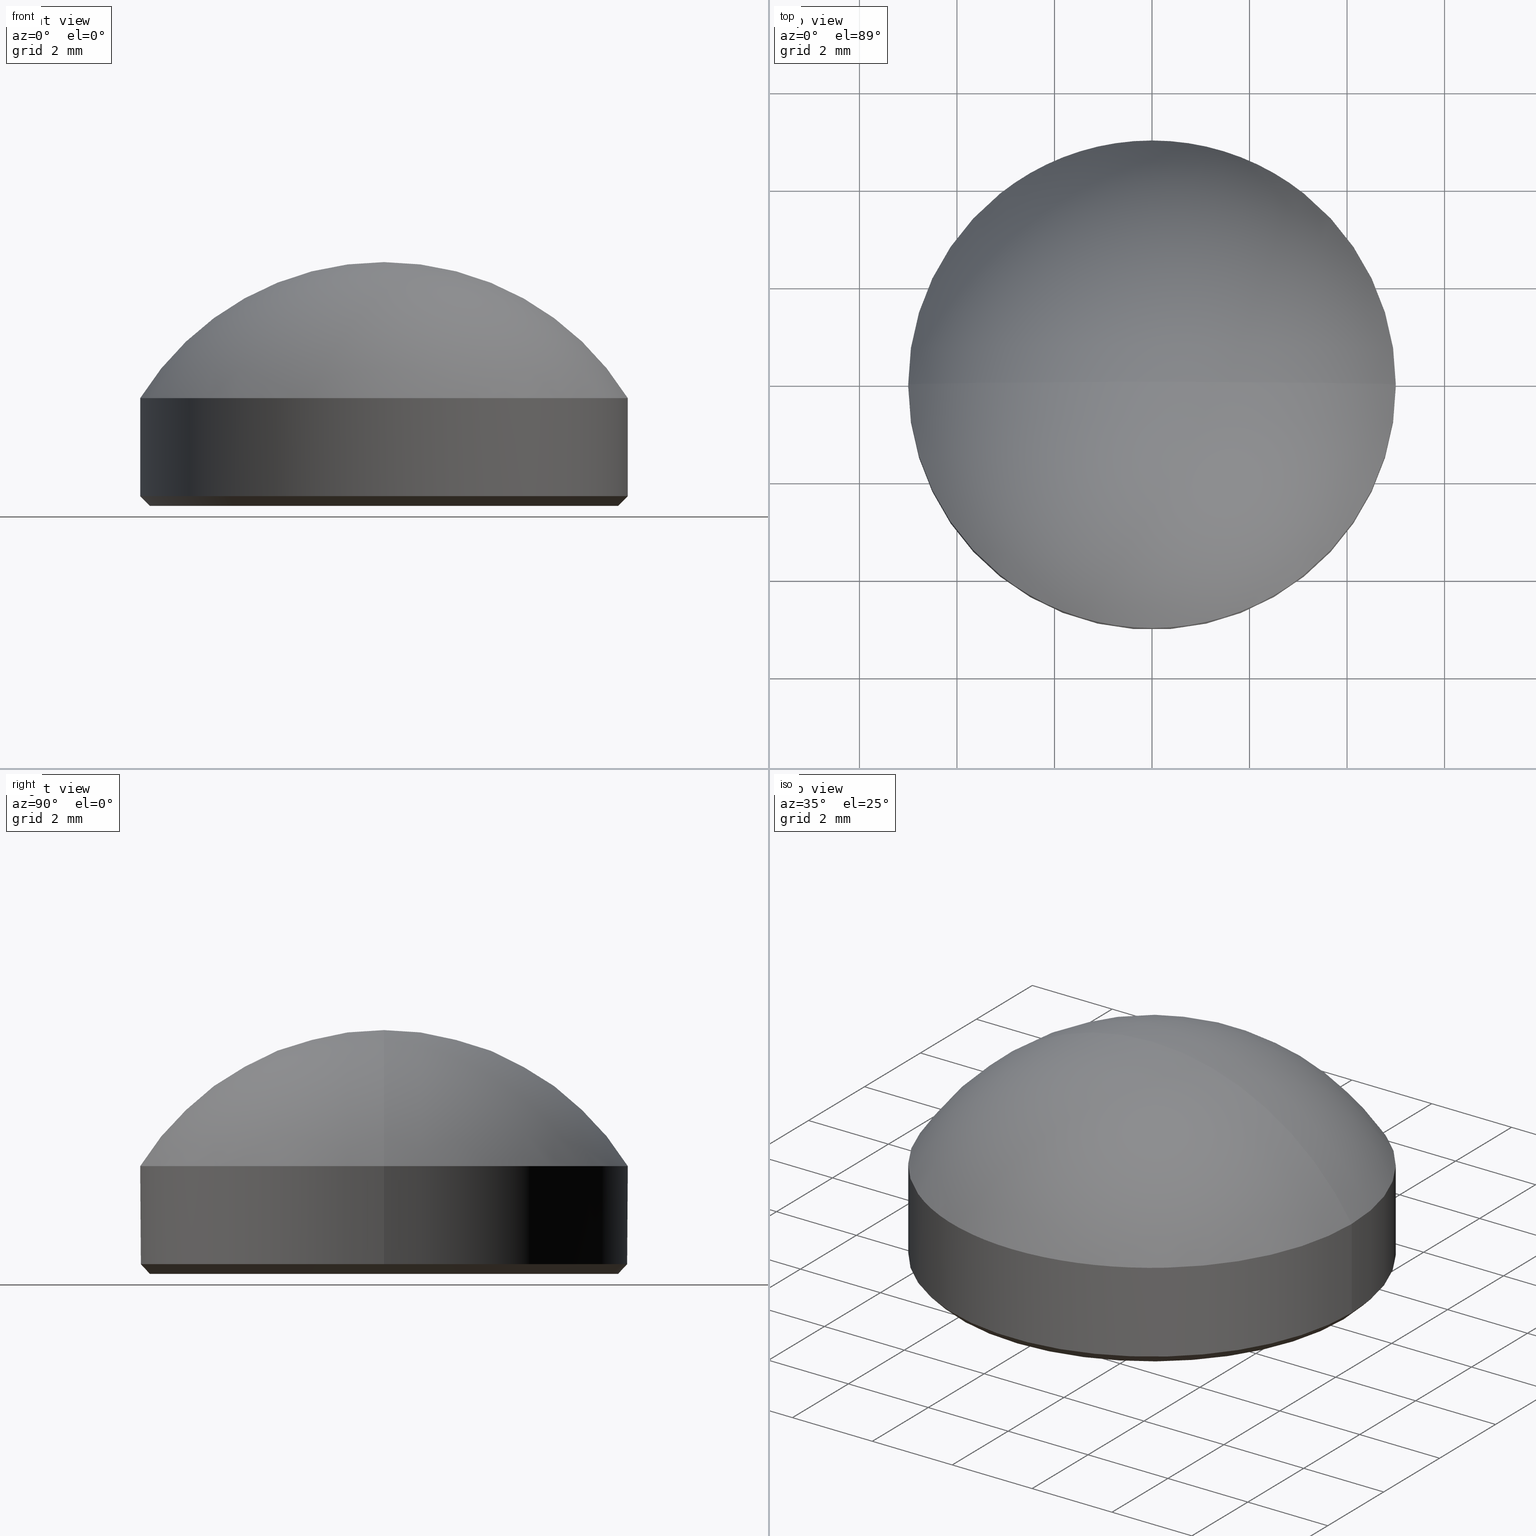
[diagram: canonical four-view strip — front | top / right | iso, engineering-drawing reading convention]
A machine part, canonical four-view strip (front | top / right | iso — engineering-drawing reading convention). The complete STEP part file that produces these views, byte-faithful:
ISO-10303-21;
HEADER;
FILE_DESCRIPTION (( 'STEP AP214' ),
    '1' );
FILE_NAME ('GLA11-010-7.5-SWIR.STEP',
    '2024-08-09T08:25:27',
    ( 'Windows User' ),
    ( 'P R C' ),
    'SwSTEP 2.0',
    'SolidWorks 2022',
    '' );
FILE_SCHEMA (( 'AUTOMOTIVE_DESIGN' ));
ENDSEC;

DATA;
#1 = DIRECTION ( 'NONE',  ( -0.000000000000000000, -0.000000000000000000, 1.000000000000000000 ) ) ;
#2 = EDGE_CURVE ( 'NONE', #148, #28, #109, .T. ) ;
#3 = AXIS2_PLACEMENT_3D ( 'NONE', #214, #1, #140 ) ;
#4 = DIRECTION ( 'NONE',  ( -0.000000000000000000, -1.000000000000000000, 0.000000000000000000 ) ) ;
#5 = EDGE_CURVE ( 'NONE', #32, #28, #160, .T. ) ;
#6 = ADVANCED_BREP_SHAPE_REPRESENTATION ( 'GLA11-010-7.5-SWIR', ( #18, #182 ), #112 ) ;
#7 = CARTESIAN_POINT ( 'NONE',  ( -5.000000000000000000, 0.000000000000000000, 2.209999999999999964 ) ) ;
#8 = AXIS2_PLACEMENT_3D ( 'NONE', #84, #174, #85 ) ;
#9 = CLOSED_SHELL ( 'NONE', ( #207, #30, #60, #17, #92, #99, #192 ) ) ;
#10 = EDGE_LOOP ( 'NONE', ( #103, #213, #146, #179 ) ) ;
#11 = AXIS2_PLACEMENT_3D ( 'NONE', #124, #62, #183 ) ;
#12 = ORIENTED_EDGE ( 'NONE', *, *, #68, .T. ) ;
#13 = ORIENTED_EDGE ( 'NONE', *, *, #166, .F. ) ;
#14 = CARTESIAN_POINT ( 'NONE',  ( 0.000000000000000000, 0.000000000000000000, 0.000000000000000000 ) ) ;
#15 = DIRECTION ( 'NONE',  ( 0.000000000000000000, 0.000000000000000000, 1.000000000000000000 ) ) ;
#16 = AXIS2_PLACEMENT_3D ( 'NONE', #26, #189, #126 ) ;
#17 = ADVANCED_FACE ( 'NONE', ( #170 ), #81, .T. ) ;
#18 = MANIFOLD_SOLID_BREP ( '����1', #9 ) ;
#19 = FACE_OUTER_BOUND ( 'NONE', #10, .T. ) ;
#20 = SURFACE_STYLE_FILL_AREA ( #65 ) ;
#21 = PRODUCT_DEFINITION ( 'δ֪', '', #186, #24 ) ;
#22 = PRESENTATION_LAYER_ASSIGNMENT (  '', '', ( #46 ) ) ;
#23 = CARTESIAN_POINT ( 'NONE',  ( -3.597575549097378931E-16, 0.000000000000000000, 5.000000000000000888 ) ) ;
#24 = PRODUCT_DEFINITION_CONTEXT ( 'detailed design', #181, 'design' ) ;
#25 = DIRECTION ( 'NONE',  ( 1.000000000000000000, -1.224646799147353207E-16, 0.000000000000000000 ) ) ;
#26 = CARTESIAN_POINT ( 'NONE',  ( 0.000000000000000000, 0.000000000000000000, 0.1999999999999987899 ) ) ;
#27 =( NAMED_UNIT ( * ) SI_UNIT ( $, .STERADIAN. ) SOLID_ANGLE_UNIT ( ) );
#28 = VERTEX_POINT ( 'NONE', #121 ) ;
#29 = CARTESIAN_POINT ( 'NONE',  ( 0.000000000000000000, 0.000000000000000000, 0.000000000000000000 ) ) ;
#30 = ADVANCED_FACE ( 'NONE', ( #204 ), #122, .T. ) ;
#31 = AXIS2_PLACEMENT_3D ( 'NONE', #110, #15, #95 ) ;
#32 = VERTEX_POINT ( 'NONE', #123 ) ;
#33 = PRODUCT_DEFINITION_SHAPE ( 'NONE', 'NONE',  #21 ) ;
#34 = EDGE_LOOP ( 'NONE', ( #52, #135, #13 ) ) ;
#35 = DIRECTION ( 'NONE',  ( -0.000000000000000000, -0.000000000000000000, -1.000000000000000000 ) ) ;
#36 = CIRCLE ( 'NONE', #128, 4.800000000000000711 ) ;
#37 = PLANE ( 'NONE',  #31 ) ;
#38 = DIRECTION ( 'NONE',  ( -0.000000000000000000, -0.000000000000000000, 1.000000000000000000 ) ) ;
#39 = EDGE_CURVE ( 'NONE', #28, #32, #191, .T. ) ;
#40 = CARTESIAN_POINT ( 'NONE',  ( 0.000000000000000000, 0.000000000000000000, 2.209999999999999964 ) ) ;
#41 = CIRCLE ( 'NONE', #143, 5.875286738351255700 ) ;
#42 = CYLINDRICAL_SURFACE ( 'NONE', #139, 5.000000000000000000 ) ;
#43 = COLOUR_RGB ( '',1.000000000000000000, 1.000000000000000000, 1.000000000000000000 ) ;
#44 = SURFACE_SIDE_STYLE ('',( #20 ) ) ;
#45 = APPLICATION_PROTOCOL_DEFINITION ( 'draft international standard', 'automotive_design', 1998, #73 ) ;
#46 = STYLED_ITEM ( 'NONE', ( #151 ), #18 ) ;
#47 =( LENGTH_UNIT ( ) NAMED_UNIT ( * ) SI_UNIT ( .MILLI., .METRE. ) );
#48 = AXIS2_PLACEMENT_3D ( 'NONE', #59, #38, #155 ) ;
#49 = DIRECTION ( 'NONE',  ( 1.000000000000000000, 0.000000000000000000, 0.000000000000000000 ) ) ;
#50 = EDGE_CURVE ( 'NONE', #212, #76, #167, .T. ) ;
#51 =( GEOMETRIC_REPRESENTATION_CONTEXT ( 3 ) GLOBAL_UNCERTAINTY_ASSIGNED_CONTEXT ( ( #89 ) ) GLOBAL_UNIT_ASSIGNED_CONTEXT ( ( #47, #159, #27 ) ) REPRESENTATION_CONTEXT ( 'NONE', 'WORKASPACE' ) );
#52 = ORIENTED_EDGE ( 'NONE', *, *, #105, .T. ) ;
#53 = DIRECTION ( 'NONE',  ( 0.000000000000000000, 0.000000000000000000, 1.000000000000000000 ) ) ;
#54 = ORIENTED_EDGE ( 'NONE', *, *, #50, .T. ) ;
#55 = EDGE_LOOP ( 'NONE', ( #12, #54 ) ) ;
#56 =( LENGTH_UNIT ( ) NAMED_UNIT ( * ) SI_UNIT ( .MILLI., .METRE. ) );
#57 = FACE_OUTER_BOUND ( 'NONE', #55, .T. ) ;
#58 = CONICAL_SURFACE ( 'NONE', #8, 5.000000000000000000, 0.7853981633974504994 ) ;
#59 = CARTESIAN_POINT ( 'NONE',  ( 0.000000000000000000, 0.000000000000000000, 0.1999999999999987899 ) ) ;
#60 = ADVANCED_FACE ( 'NONE', ( #77 ), #42, .T. ) ;
#61 = LINE ( 'NONE', #94, #115 ) ;
#62 = DIRECTION ( 'NONE',  ( -0.000000000000000000, -1.000000000000000000, 0.000000000000000000 ) ) ;
#63 = DIRECTION ( 'NONE',  ( -1.224646799147353207E-16, -1.000000000000000000, -0.000000000000000000 ) ) ;
#64 = DIRECTION ( 'NONE',  ( -1.000000000000000000, 0.000000000000000000, 0.000000000000000000 ) ) ;
#65 = FILL_AREA_STYLE ('',( #208 ) ) ;
#66 = CIRCLE ( 'NONE', #194, 5.875286738351255700 ) ;
#67 = SURFACE_STYLE_USAGE ( .BOTH. , #44 ) ;
#68 = EDGE_CURVE ( 'NONE', #76, #212, #36, .T. ) ;
#69 = LINE ( 'NONE', #98, #108 ) ;
#70 = ORIENTED_EDGE ( 'NONE', *, *, #166, .T. ) ;
#71 = CONICAL_SURFACE ( 'NONE', #16, 5.000000000000000000, 0.7853981633974504994 ) ;
#72 = EDGE_CURVE ( 'NONE', #76, #28, #61, .T. ) ;
#73 = APPLICATION_CONTEXT ( 'automotive_design' ) ;
#74 = PRODUCT ( 'GLA11-010-7.5-SWIR', 'GLA11-010-7.5-SWIR', '', ( #164 ) ) ;
#75 = AXIS2_PLACEMENT_3D ( 'NONE', #209, #4, #64 ) ;
#76 = VERTEX_POINT ( 'NONE', #200 ) ;
#77 = FACE_OUTER_BOUND ( 'NONE', #144, .T. ) ;
#78 =( NAMED_UNIT ( * ) SI_UNIT ( $, .STERADIAN. ) SOLID_ANGLE_UNIT ( ) );
#79 = CARTESIAN_POINT ( 'NONE',  ( -5.000000000000000000, 0.000000000000000000, 2.209999999999999964 ) ) ;
#80 =( GEOMETRIC_REPRESENTATION_CONTEXT ( 3 ) GLOBAL_UNCERTAINTY_ASSIGNED_CONTEXT ( ( #163 ) ) GLOBAL_UNIT_ASSIGNED_CONTEXT ( ( #56, #185, #78 ) ) REPRESENTATION_CONTEXT ( 'NONE', 'WORKASPACE' ) );
#81 = CYLINDRICAL_SURFACE ( 'NONE', #134, 5.000000000000000000 ) ;
#82 = CARTESIAN_POINT ( 'NONE',  ( 5.000000000000000000, 6.123233995736766282E-16, 2.209999999999999964 ) ) ;
#83 = AXIS2_PLACEMENT_3D ( 'NONE', #14, #187, #138 ) ;
#84 = CARTESIAN_POINT ( 'NONE',  ( 0.000000000000000000, 0.000000000000000000, 0.1999999999999987899 ) ) ;
#85 = DIRECTION ( 'NONE',  ( 1.000000000000000000, 0.000000000000000000, 0.000000000000000000 ) ) ;
#86 =( LENGTH_UNIT ( ) NAMED_UNIT ( * ) SI_UNIT ( .MILLI., .METRE. ) );
#87 = CARTESIAN_POINT ( 'NONE',  ( -4.800000000000000711, 6.000769315822031726E-16, 0.000000000000000000 ) ) ;
#88 = ORIENTED_EDGE ( 'NONE', *, *, #205, .F. ) ;
#89 = UNCERTAINTY_MEASURE_WITH_UNIT (LENGTH_MEASURE( 1.000000000000000082E-05 ), #47, 'distance_accuracy_value', 'NONE');
#90 = ORIENTED_EDGE ( 'NONE', *, *, #72, .F. ) ;
#91 = ORIENTED_EDGE ( 'NONE', *, *, #50, .F. ) ;
#92 = ADVANCED_FACE ( 'NONE', ( #57 ), #37, .F. ) ;
#93 = DIRECTION ( 'NONE',  ( 1.000000000000000000, 0.000000000000000000, 0.000000000000000000 ) ) ;
#94 = CARTESIAN_POINT ( 'NONE',  ( 5.000000000000000000, 0.000000000000000000, 0.1999999999999987899 ) ) ;
#95 = DIRECTION ( 'NONE',  ( 1.000000000000000000, 0.000000000000000000, -0.000000000000000000 ) ) ;
#96 = VECTOR ( 'NONE', #177, 1000.000000000000000 ) ;
#97 = SURFACE_STYLE_USAGE ( .BOTH. , #111 ) ;
#98 = CARTESIAN_POINT ( 'NONE',  ( -5.000000000000000000, 6.123233995736766282E-16, 0.1999999999999987899 ) ) ;
#99 = ADVANCED_FACE ( 'NONE', ( #152 ), #175, .T. ) ;
#100 = CARTESIAN_POINT ( 'NONE',  ( 0.000000000000000000, 0.000000000000000000, 2.209999999999999964 ) ) ;
#101 = CARTESIAN_POINT ( 'NONE',  ( 0.000000000000000000, 0.000000000000000000, -0.8752867383512550337 ) ) ;
#102 = DIRECTION ( 'NONE',  ( 1.000000000000000000, 0.000000000000000000, 0.000000000000000000 ) ) ;
#103 = ORIENTED_EDGE ( 'NONE', *, *, #199, .F. ) ;
#104 = VERTEX_POINT ( 'NONE', #79 ) ;
#105 = EDGE_CURVE ( 'NONE', #104, #148, #153, .T. ) ;
#106 = ORIENTED_EDGE ( 'NONE', *, *, #5, .T. ) ;
#107 = VERTEX_POINT ( 'NONE', #23 ) ;
#108 = VECTOR ( 'NONE', #127, 1000.000000000000114 ) ;
#109 = LINE ( 'NONE', #82, #150 ) ;
#110 = CARTESIAN_POINT ( 'NONE',  ( 0.000000000000000000, 0.000000000000000000, 0.000000000000000000 ) ) ;
#111 = SURFACE_SIDE_STYLE ('',( #169 ) ) ;
#112 =( GEOMETRIC_REPRESENTATION_CONTEXT ( 3 ) GLOBAL_UNCERTAINTY_ASSIGNED_CONTEXT ( ( #113 ) ) GLOBAL_UNIT_ASSIGNED_CONTEXT ( ( #86, #190, #142 ) ) REPRESENTATION_CONTEXT ( 'NONE', 'WORKASPACE' ) );
#113 = UNCERTAINTY_MEASURE_WITH_UNIT (LENGTH_MEASURE( 1.000000000000000082E-05 ), #86, 'distance_accuracy_value', 'NONE');
#114 = PRESENTATION_STYLE_ASSIGNMENT (( #67 ) ) ;
#115 = VECTOR ( 'NONE', #172, 1000.000000000000114 ) ;
#116 = PRODUCT_RELATED_PRODUCT_CATEGORY ( 'part', '', ( #74 ) ) ;
#117 = LINE ( 'NONE', #7, #96 ) ;
#118 = CARTESIAN_POINT ( 'NONE',  ( 5.000000000000000000, 6.123233995736766282E-16, 2.209999999999999964 ) ) ;
#119 = FACE_OUTER_BOUND ( 'NONE', #120, .T. ) ;
#120 = EDGE_LOOP ( 'NONE', ( #91, #154, #131, #90 ) ) ;
#121 = CARTESIAN_POINT ( 'NONE',  ( 5.000000000000000000, 6.123233995736766282E-16, 0.1999999999999987899 ) ) ;
#122 = SPHERICAL_SURFACE ( 'NONE', #11, 5.875286738351255700 ) ;
#123 = CARTESIAN_POINT ( 'NONE',  ( -5.000000000000000000, 0.000000000000000000, 0.1999999999999987899 ) ) ;
#124 = CARTESIAN_POINT ( 'NONE',  ( 0.000000000000000000, 0.000000000000000000, -0.8752867383512550337 ) ) ;
#125 = DIRECTION ( 'NONE',  ( 0.000000000000000000, 0.000000000000000000, 1.000000000000000000 ) ) ;
#126 = DIRECTION ( 'NONE',  ( 1.000000000000000000, 0.000000000000000000, 0.000000000000000000 ) ) ;
#127 = DIRECTION ( 'NONE',  ( -0.7071067811865490160, 8.659560562354953812E-17, 0.7071067811865460184 ) ) ;
#128 = AXIS2_PLACEMENT_3D ( 'NONE', #215, #35, #93 ) ;
#129 = CARTESIAN_POINT ( 'NONE',  ( 0.000000000000000000, 0.000000000000000000, 2.209999999999999964 ) ) ;
#130 = EDGE_CURVE ( 'NONE', #148, #107, #41, .T. ) ;
#131 = ORIENTED_EDGE ( 'NONE', *, *, #39, .F. ) ;
#132 = SHAPE_DEFINITION_REPRESENTATION ( #33, #6 ) ;
#133 = ORIENTED_EDGE ( 'NONE', *, *, #105, .F. ) ;
#134 = AXIS2_PLACEMENT_3D ( 'NONE', #40, #188, #168 ) ;
#135 = ORIENTED_EDGE ( 'NONE', *, *, #130, .T. ) ;
#136 = AXIS2_PLACEMENT_3D ( 'NONE', #100, #161, #158 ) ;
#137 = ORIENTED_EDGE ( 'NONE', *, *, #130, .F. ) ;
#138 = DIRECTION ( 'NONE',  ( 1.000000000000000000, 0.000000000000000000, 0.000000000000000000 ) ) ;
#139 = AXIS2_PLACEMENT_3D ( 'NONE', #198, #203, #173 ) ;
#140 = DIRECTION ( 'NONE',  ( 1.000000000000000000, 0.000000000000000000, 0.000000000000000000 ) ) ;
#141 = DIRECTION ( 'NONE',  ( -0.000000000000000000, -0.000000000000000000, -1.000000000000000000 ) ) ;
#142 =( NAMED_UNIT ( * ) SI_UNIT ( $, .STERADIAN. ) SOLID_ANGLE_UNIT ( ) );
#143 = AXIS2_PLACEMENT_3D ( 'NONE', #101, #63, #25 ) ;
#144 = EDGE_LOOP ( 'NONE', ( #88, #210, #147, #162 ) ) ;
#145 = AXIS2_PLACEMENT_3D ( 'NONE', #129, #193, #49 ) ;
#146 = ORIENTED_EDGE ( 'NONE', *, *, #72, .T. ) ;
#147 = ORIENTED_EDGE ( 'NONE', *, *, #39, .T. ) ;
#148 = VERTEX_POINT ( 'NONE', #118 ) ;
#149 = FILL_AREA_STYLE_COLOUR ( '', #43 ) ;
#150 = VECTOR ( 'NONE', #141, 1000.000000000000000 ) ;
#151 = PRESENTATION_STYLE_ASSIGNMENT (( #97 ) ) ;
#152 = FACE_OUTER_BOUND ( 'NONE', #195, .T. ) ;
#153 = CIRCLE ( 'NONE', #145, 5.000000000000000000 ) ;
#154 = ORIENTED_EDGE ( 'NONE', *, *, #199, .T. ) ;
#155 = DIRECTION ( 'NONE',  ( 1.000000000000000000, 0.000000000000000000, 0.000000000000000000 ) ) ;
#156 = CARTESIAN_POINT ( 'NONE',  ( 0.000000000000000000, 0.000000000000000000, -0.8752867383512550337 ) ) ;
#157 = CIRCLE ( 'NONE', #136, 5.000000000000000000 ) ;
#158 = DIRECTION ( 'NONE',  ( 1.000000000000000000, 0.000000000000000000, 0.000000000000000000 ) ) ;
#159 =( NAMED_UNIT ( * ) PLANE_ANGLE_UNIT ( ) SI_UNIT ( $, .RADIAN. ) );
#160 = CIRCLE ( 'NONE', #48, 5.000000000000000000 ) ;
#161 = DIRECTION ( 'NONE',  ( 0.000000000000000000, 0.000000000000000000, 1.000000000000000000 ) ) ;
#162 = ORIENTED_EDGE ( 'NONE', *, *, #176, .F. ) ;
#163 = UNCERTAINTY_MEASURE_WITH_UNIT (LENGTH_MEASURE( 1.000000000000000082E-05 ), #56, 'distance_accuracy_value', 'NONE');
#164 = PRODUCT_CONTEXT ( 'NONE', #73, 'mechanical' ) ;
#165 = ORIENTED_EDGE ( 'NONE', *, *, #205, .T. ) ;
#166 = EDGE_CURVE ( 'NONE', #104, #107, #66, .T. ) ;
#167 = CIRCLE ( 'NONE', #83, 4.800000000000000711 ) ;
#168 = DIRECTION ( 'NONE',  ( -1.000000000000000000, 0.000000000000000000, 0.000000000000000000 ) ) ;
#169 = SURFACE_STYLE_FILL_AREA ( #202 ) ;
#170 = FACE_OUTER_BOUND ( 'NONE', #180, .T. ) ;
#171 = STYLED_ITEM ( 'NONE', ( #114 ), #6 ) ;
#172 = DIRECTION ( 'NONE',  ( 0.7071067811865490160, 0.000000000000000000, 0.7071067811865460184 ) ) ;
#173 = DIRECTION ( 'NONE',  ( -1.000000000000000000, 0.000000000000000000, 0.000000000000000000 ) ) ;
#174 = DIRECTION ( 'NONE',  ( -0.000000000000000000, -0.000000000000000000, 1.000000000000000000 ) ) ;
#175 = SPHERICAL_SURFACE ( 'NONE', #75, 5.875286738351255700 ) ;
#176 = EDGE_CURVE ( 'NONE', #104, #32, #117, .T. ) ;
#177 = DIRECTION ( 'NONE',  ( -0.000000000000000000, -0.000000000000000000, -1.000000000000000000 ) ) ;
#178 = APPLICATION_PROTOCOL_DEFINITION ( 'draft international standard', 'automotive_design', 1998, #181 ) ;
#179 = ORIENTED_EDGE ( 'NONE', *, *, #5, .F. ) ;
#180 = EDGE_LOOP ( 'NONE', ( #196, #133, #197, #106 ) ) ;
#181 = APPLICATION_CONTEXT ( 'automotive_design' ) ;
#182 = AXIS2_PLACEMENT_3D ( 'NONE', #29, #53, #102 ) ;
#183 = DIRECTION ( 'NONE',  ( -1.000000000000000000, 0.000000000000000000, 0.000000000000000000 ) ) ;
#184 = COLOUR_RGB ( '',1.000000000000000000, 1.000000000000000000, 1.000000000000000000 ) ;
#185 =( NAMED_UNIT ( * ) PLANE_ANGLE_UNIT ( ) SI_UNIT ( $, .RADIAN. ) );
#186 = PRODUCT_DEFINITION_FORMATION_WITH_SPECIFIED_SOURCE ( '�κ�', '', #74, .NOT_KNOWN. ) ;
#187 = DIRECTION ( 'NONE',  ( -0.000000000000000000, -0.000000000000000000, -1.000000000000000000 ) ) ;
#188 = DIRECTION ( 'NONE',  ( -0.000000000000000000, -0.000000000000000000, -1.000000000000000000 ) ) ;
#189 = DIRECTION ( 'NONE',  ( -0.000000000000000000, -0.000000000000000000, 1.000000000000000000 ) ) ;
#190 =( NAMED_UNIT ( * ) PLANE_ANGLE_UNIT ( ) SI_UNIT ( $, .RADIAN. ) );
#191 = CIRCLE ( 'NONE', #3, 5.000000000000000000 ) ;
#192 = ADVANCED_FACE ( 'NONE', ( #19 ), #58, .T. ) ;
#193 = DIRECTION ( 'NONE',  ( 0.000000000000000000, 0.000000000000000000, 1.000000000000000000 ) ) ;
#194 = AXIS2_PLACEMENT_3D ( 'NONE', #156, #206, #125 ) ;
#195 = EDGE_LOOP ( 'NONE', ( #137, #165, #70 ) ) ;
#196 = ORIENTED_EDGE ( 'NONE', *, *, #2, .F. ) ;
#197 = ORIENTED_EDGE ( 'NONE', *, *, #176, .T. ) ;
#198 = CARTESIAN_POINT ( 'NONE',  ( 0.000000000000000000, 0.000000000000000000, 2.209999999999999964 ) ) ;
#199 = EDGE_CURVE ( 'NONE', #212, #32, #69, .T. ) ;
#200 = CARTESIAN_POINT ( 'NONE',  ( 4.800000000000000711, 0.000000000000000000, 0.000000000000000000 ) ) ;
#201 = MECHANICAL_DESIGN_GEOMETRIC_PRESENTATION_REPRESENTATION (  '', ( #171 ), #51 ) ;
#202 = FILL_AREA_STYLE ('',( #149 ) ) ;
#203 = DIRECTION ( 'NONE',  ( -0.000000000000000000, -0.000000000000000000, -1.000000000000000000 ) ) ;
#204 = FACE_OUTER_BOUND ( 'NONE', #34, .T. ) ;
#205 = EDGE_CURVE ( 'NONE', #148, #104, #157, .T. ) ;
#206 = DIRECTION ( 'NONE',  ( 0.000000000000000000, 1.000000000000000000, 0.000000000000000000 ) ) ;
#207 = ADVANCED_FACE ( 'NONE', ( #119 ), #71, .T. ) ;
#208 = FILL_AREA_STYLE_COLOUR ( '', #184 ) ;
#209 = CARTESIAN_POINT ( 'NONE',  ( 0.000000000000000000, 0.000000000000000000, -0.8752867383512550337 ) ) ;
#210 = ORIENTED_EDGE ( 'NONE', *, *, #2, .T. ) ;
#211 = PRESENTATION_LAYER_ASSIGNMENT (  '', '', ( #171 ) ) ;
#212 = VERTEX_POINT ( 'NONE', #87 ) ;
#213 = ORIENTED_EDGE ( 'NONE', *, *, #68, .F. ) ;
#214 = CARTESIAN_POINT ( 'NONE',  ( 0.000000000000000000, 0.000000000000000000, 0.1999999999999987899 ) ) ;
#215 = CARTESIAN_POINT ( 'NONE',  ( 0.000000000000000000, 0.000000000000000000, 0.000000000000000000 ) ) ;
#216 = MECHANICAL_DESIGN_GEOMETRIC_PRESENTATION_REPRESENTATION (  '', ( #46 ), #80 ) ;
ENDSEC;
END-ISO-10303-21;
